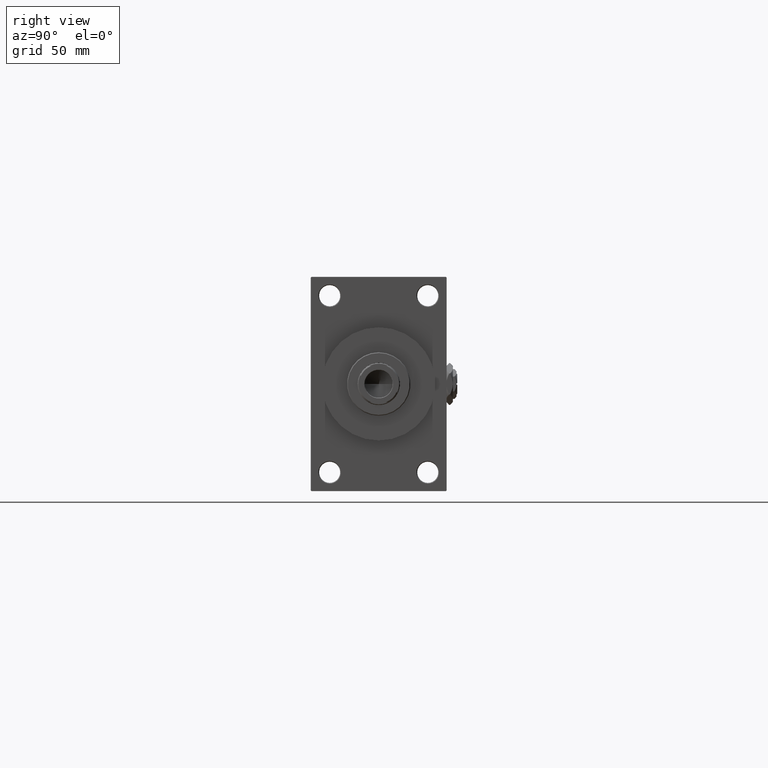
[diagram: clean part render]
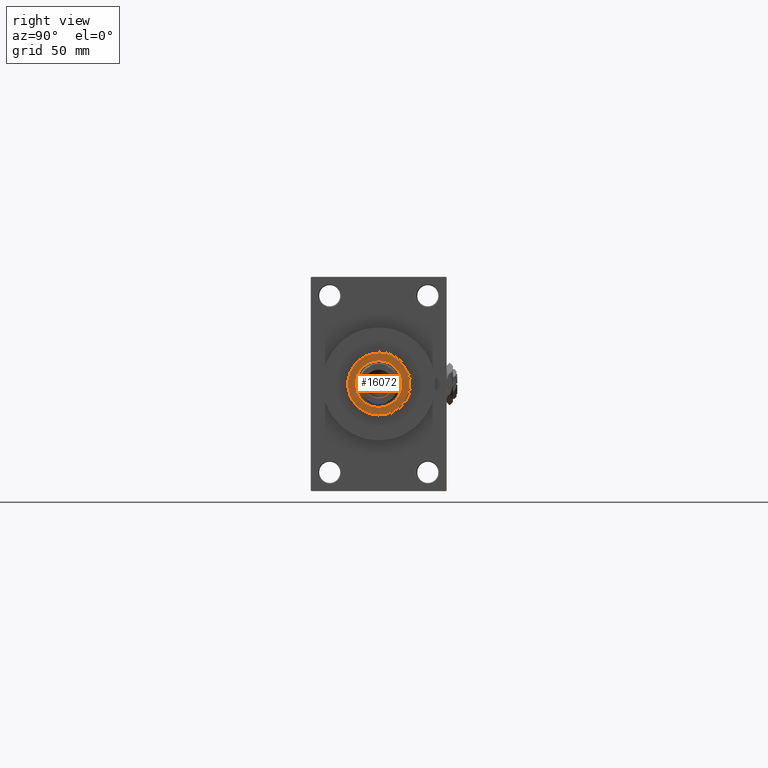
[diagram: same view with one face highlighted and labeled with its STEP entity id]
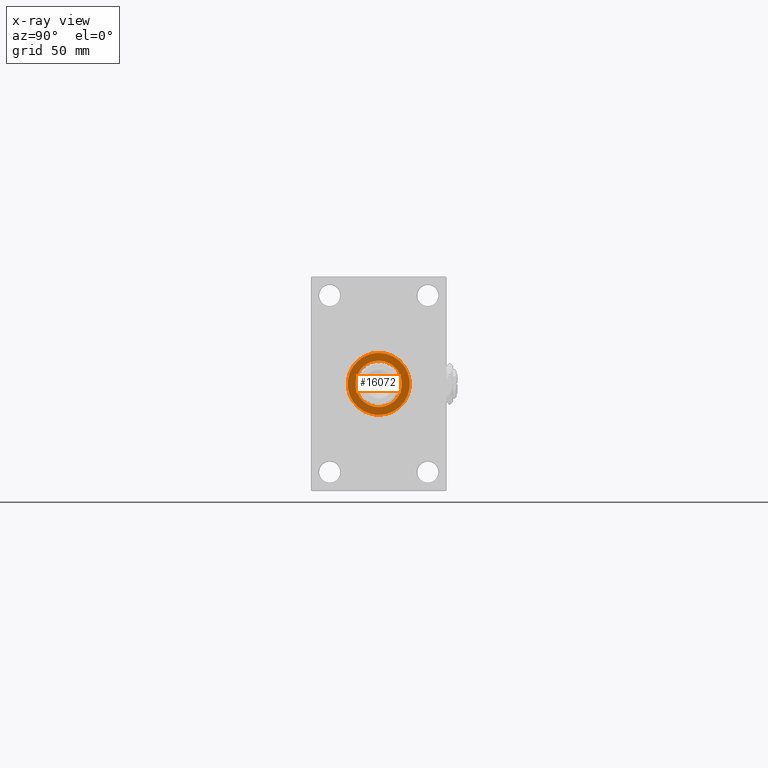
[diagram: x-ray of the same camera — body ghosted, the highlighted face saturated]
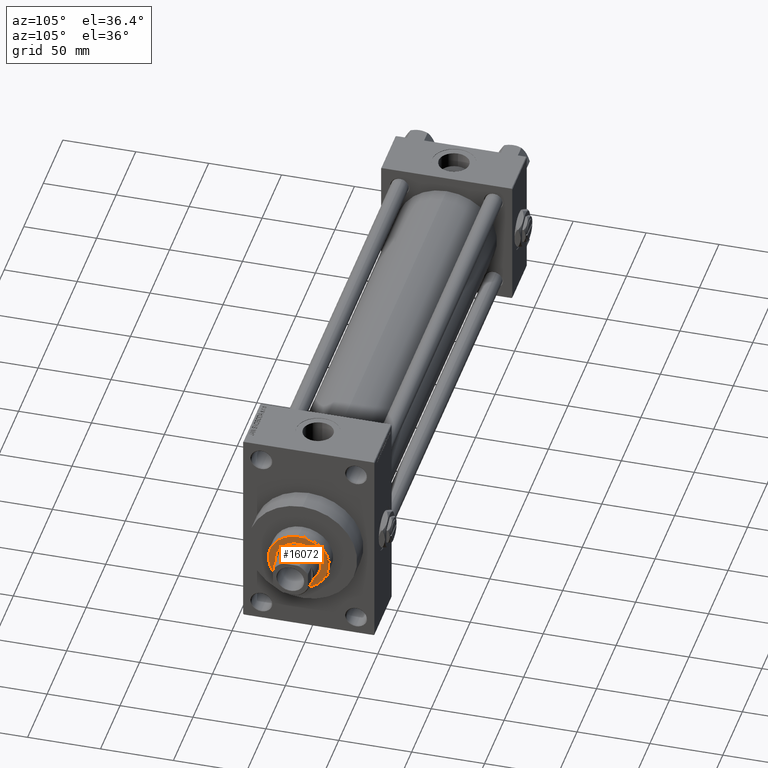
[diagram: same view with one face highlighted and labeled with its STEP entity id]
A machine part, right view. The second image highlights one B-rep face of the part: STEP entity #16072.
The next image is the same camera in x-ray: the body ghosted, the highlighted face saturated — about 0% of this face is hidden behind the body in this view.
A second angle (auxiliary view) of the same face is appended — the face is thin or edge-on in the first view.
In plain terms, the highlighted planar face has unit normal (1, -0, -0).
Its self-contained STEP definition (entity closure, byte-faithful):
#1398 = CARTESIAN_POINT ( 'NONE',  ( -15.50000000000000000, 1.898202538678397557E-15, 54.26000000000000512 ) ) ;
#1843 = AXIS2_PLACEMENT_3D ( 'NONE', #7492, #15199, #22940 ) ;
#2162 = DIRECTION ( 'NONE',  ( 0.000000000000000000, 0.000000000000000000, 1.000000000000000000 ) ) ;
#2703 = CARTESIAN_POINT ( 'NONE',  ( 20.50000000000001776, 2.541142108230759057E-15, 54.26000000000000512 ) ) ;
#2923 = VERTEX_POINT ( 'NONE', #2703 ) ;
#3515 = DIRECTION ( 'NONE',  ( 0.000000000000000000, 0.000000000000000000, 1.000000000000000000 ) ) ;
#4187 = EDGE_CURVE ( 'NONE', #28778, #45795, #38998, .T. ) ;
#6268 = DIRECTION ( 'NONE',  ( 1.000000000000000000, 0.000000000000000000, 0.000000000000000000 ) ) ;
#6468 = EDGE_CURVE ( 'NONE', #9126, #2923, #39842, .T. ) ;
#7278 = AXIS2_PLACEMENT_3D ( 'NONE', #16543, #19550, #38987 ) ;
#7492 = CARTESIAN_POINT ( 'NONE',  ( 0.000000000000000000, 0.000000000000000000, 54.26000000000000512 ) ) ;
#9126 = VERTEX_POINT ( 'NONE', #26526 ) ;
#9214 = EDGE_CURVE ( 'NONE', #45795, #28778, #28756, .T. ) ;
#12180 = CARTESIAN_POINT ( 'NONE',  ( 15.50000000000000000, 0.000000000000000000, 54.26000000000000512 ) ) ;
#13177 = EDGE_CURVE ( 'NONE', #2923, #9126, #44814, .T. ) ;
#13262 = EDGE_LOOP ( 'NONE', ( #33324, #36255 ) ) ;
#15199 = DIRECTION ( 'NONE',  ( 0.000000000000000000, 0.000000000000000000, 1.000000000000000000 ) ) ;
#16072 = ADVANCED_FACE ( 'NONE', ( #30669, #42144 ), #46134, .T. ) ;
#16543 = CARTESIAN_POINT ( 'NONE',  ( 0.000000000000000000, 0.000000000000000000, 54.26000000000000512 ) ) ;
#19550 = DIRECTION ( 'NONE',  ( 0.000000000000000000, 0.000000000000000000, 1.000000000000000000 ) ) ;
#22940 = DIRECTION ( 'NONE',  ( 1.000000000000000000, 0.000000000000000000, 0.000000000000000000 ) ) ;
#23051 = AXIS2_PLACEMENT_3D ( 'NONE', #33414, #41389, #6268 ) ;
#26030 = ORIENTED_EDGE ( 'NONE', *, *, #6468, .T. ) ;
#26526 = CARTESIAN_POINT ( 'NONE',  ( -20.50000000000001776, 0.000000000000000000, 54.26000000000000512 ) ) ;
#28756 = CIRCLE ( 'NONE', #7278, 15.50000000000000000 ) ;
#28778 = VERTEX_POINT ( 'NONE', #1398 ) ;
#28819 = CARTESIAN_POINT ( 'NONE',  ( 0.000000000000000000, 0.000000000000000000, 54.26000000000000512 ) ) ;
#29688 = AXIS2_PLACEMENT_3D ( 'NONE', #48881, #3515, #33919 ) ;
#29750 = ORIENTED_EDGE ( 'NONE', *, *, #13177, .T. ) ;
#30669 = FACE_BOUND ( 'NONE', #13262, .T. ) ;
#33324 = ORIENTED_EDGE ( 'NONE', *, *, #9214, .F. ) ;
#33414 = CARTESIAN_POINT ( 'NONE',  ( 0.000000000000000000, 0.000000000000000000, 54.26000000000000512 ) ) ;
#33919 = DIRECTION ( 'NONE',  ( 1.000000000000000000, 0.000000000000000000, -0.000000000000000000 ) ) ;
#34254 = AXIS2_PLACEMENT_3D ( 'NONE', #28819, #2162, #40535 ) ;
#36255 = ORIENTED_EDGE ( 'NONE', *, *, #4187, .F. ) ;
#37561 = EDGE_LOOP ( 'NONE', ( #26030, #29750 ) ) ;
#38987 = DIRECTION ( 'NONE',  ( 1.000000000000000000, 0.000000000000000000, 0.000000000000000000 ) ) ;
#38998 = CIRCLE ( 'NONE', #23051, 15.50000000000000000 ) ;
#39842 = CIRCLE ( 'NONE', #34254, 20.50000000000001776 ) ;
#40535 = DIRECTION ( 'NONE',  ( 1.000000000000000000, 0.000000000000000000, 0.000000000000000000 ) ) ;
#41389 = DIRECTION ( 'NONE',  ( 0.000000000000000000, 0.000000000000000000, 1.000000000000000000 ) ) ;
#42144 = FACE_OUTER_BOUND ( 'NONE', #37561, .T. ) ;
#44814 = CIRCLE ( 'NONE', #1843, 20.50000000000001776 ) ;
#45795 = VERTEX_POINT ( 'NONE', #12180 ) ;
#46134 = PLANE ( 'NONE',  #29688 ) ;
#48881 = CARTESIAN_POINT ( 'NONE',  ( 0.000000000000000000, 0.000000000000000000, 54.26000000000000512 ) ) ;